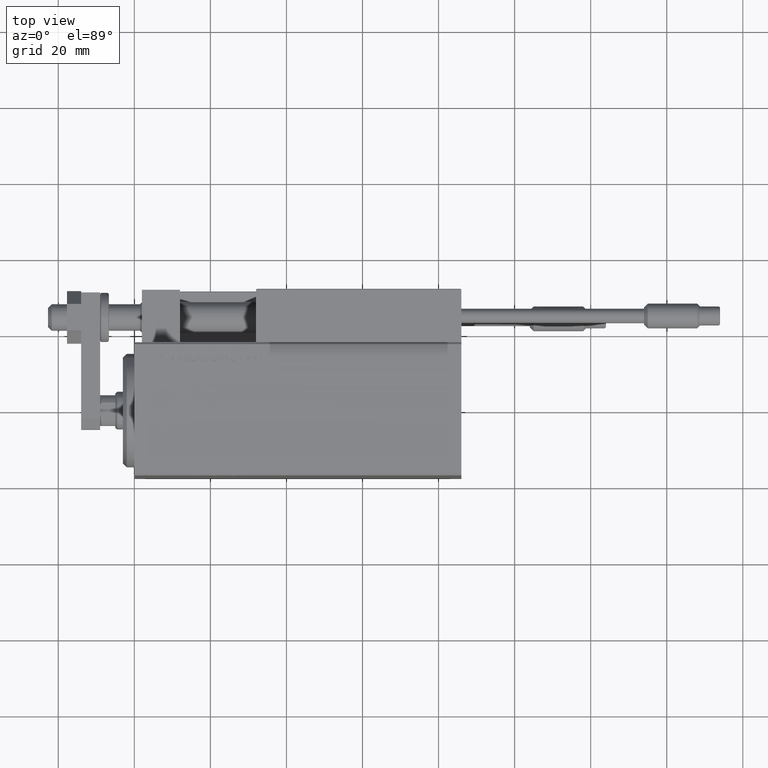
[diagram: clean part render]
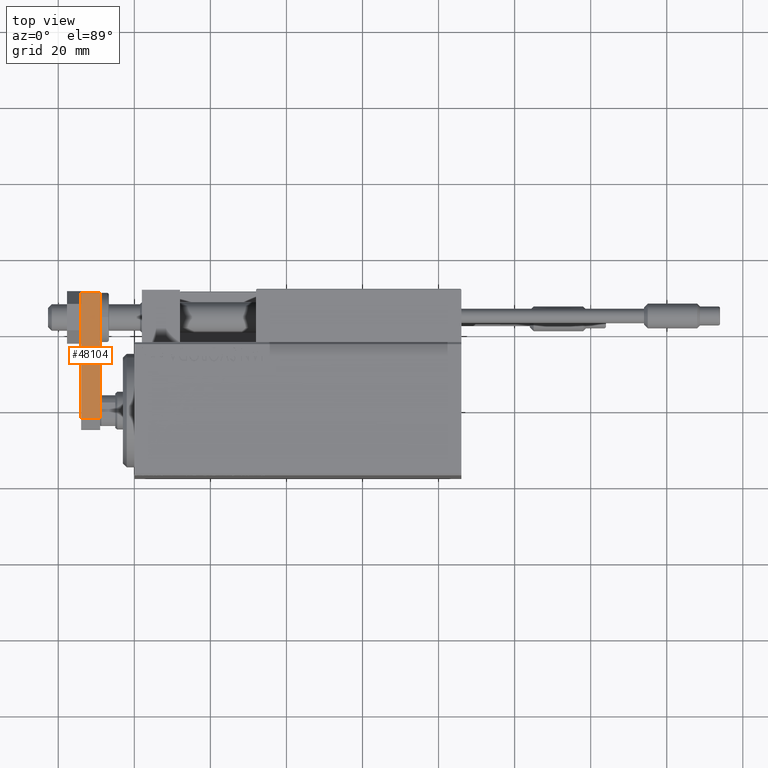
[diagram: same view with one face highlighted and labeled with its STEP entity id]
A machine part, top view. The second image highlights one B-rep face of the part: STEP entity #48104.
In plain terms, the highlighted planar face has unit normal (0, 0, -1).
Its self-contained STEP definition (entity closure, byte-faithful):
#90 = FACE_OUTER_BOUND ( 'NONE', #14141, .T. ) ;
#1520 = VECTOR ( 'NONE', #43716, 1000.000000000000000 ) ;
#2642 = AXIS2_PLACEMENT_3D ( 'NONE', #43395, #31368, #20085 ) ;
#3263 = VERTEX_POINT ( 'NONE', #30433 ) ;
#4029 = LINE ( 'NONE', #15286, #12835 ) ;
#4337 = VERTEX_POINT ( 'NONE', #26951 ) ;
#4459 = PLANE ( 'NONE',  #2642 ) ;
#9884 = DIRECTION ( 'NONE',  ( 0.000000000000000000, 0.000000000000000000, -1.000000000000000000 ) ) ;
#12835 = VECTOR ( 'NONE', #26837, 1000.000000000000000 ) ;
#14141 = EDGE_LOOP ( 'NONE', ( #41494, #28707, #19090, #37294 ) ) ;
#15286 = CARTESIAN_POINT ( 'NONE',  ( 5.999999999999995559, 0.000000000000000000, 0.000000000000000000 ) ) ;
#16048 = LINE ( 'NONE', #47565, #1520 ) ;
#16554 = VECTOR ( 'NONE', #42810, 1000.000000000000000 ) ;
#19090 = ORIENTED_EDGE ( 'NONE', *, *, #32230, .T. ) ;
#20085 = DIRECTION ( 'NONE',  ( -3.614007241618348278E-16, -1.000000000000000000, 0.000000000000000000 ) ) ;
#20759 = CARTESIAN_POINT ( 'NONE',  ( 6.000000000000008882, 36.00000000000000000, 5.000000000000000000 ) ) ;
#22768 = VECTOR ( 'NONE', #9884, 1000.000000000000000 ) ;
#26837 = DIRECTION ( 'NONE',  ( 3.614007241618348278E-16, 1.000000000000000000, 0.000000000000000000 ) ) ;
#26944 = CARTESIAN_POINT ( 'NONE',  ( 6.000000000000008882, 36.00000000000000000, 5.000000000000000000 ) ) ;
#26951 = CARTESIAN_POINT ( 'NONE',  ( 6.000000000000008882, 36.00000000000000000, 0.000000000000000000 ) ) ;
#28707 = ORIENTED_EDGE ( 'NONE', *, *, #34991, .T. ) ;
#29822 = EDGE_CURVE ( 'NONE', #38167, #4337, #30785, .T. ) ;
#30147 = LINE ( 'NONE', #45006, #22768 ) ;
#30433 = CARTESIAN_POINT ( 'NONE',  ( 5.999999999999996447, 2.799999999999997158, 0.000000000000000000 ) ) ;
#30785 = LINE ( 'NONE', #26944, #16554 ) ;
#31368 = DIRECTION ( 'NONE',  ( -1.000000000000000000, 3.614007241618348278E-16, 0.000000000000000000 ) ) ;
#32230 = EDGE_CURVE ( 'NONE', #3263, #4337, #4029, .T. ) ;
#33333 = CARTESIAN_POINT ( 'NONE',  ( 5.999999999999996447, 2.799999999999997158, 5.000000000000000000 ) ) ;
#34991 = EDGE_CURVE ( 'NONE', #39685, #3263, #30147, .T. ) ;
#37294 = ORIENTED_EDGE ( 'NONE', *, *, #29822, .F. ) ;
#38167 = VERTEX_POINT ( 'NONE', #20759 ) ;
#39094 = EDGE_CURVE ( 'NONE', #39685, #38167, #16048, .T. ) ;
#39685 = VERTEX_POINT ( 'NONE', #33333 ) ;
#41494 = ORIENTED_EDGE ( 'NONE', *, *, #39094, .F. ) ;
#42810 = DIRECTION ( 'NONE',  ( -0.000000000000000000, -0.000000000000000000, -1.000000000000000000 ) ) ;
#43395 = CARTESIAN_POINT ( 'NONE',  ( 5.999999999999995559, 0.000000000000000000, 5.000000000000000000 ) ) ;
#43716 = DIRECTION ( 'NONE',  ( 3.614007241618348278E-16, 1.000000000000000000, 0.000000000000000000 ) ) ;
#45006 = CARTESIAN_POINT ( 'NONE',  ( 5.999999999999996447, 2.799999999999997158, 5.000000000000000000 ) ) ;
#47565 = CARTESIAN_POINT ( 'NONE',  ( 5.999999999999995559, 0.000000000000000000, 5.000000000000000000 ) ) ;
#48104 = ADVANCED_FACE ( 'NONE', ( #90 ), #4459, .F. ) ;